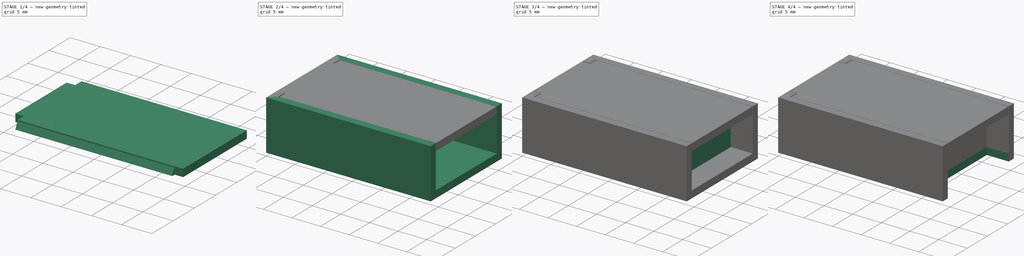
[diagram: build sequence overview — one tinted view per stage of 4, left to right]
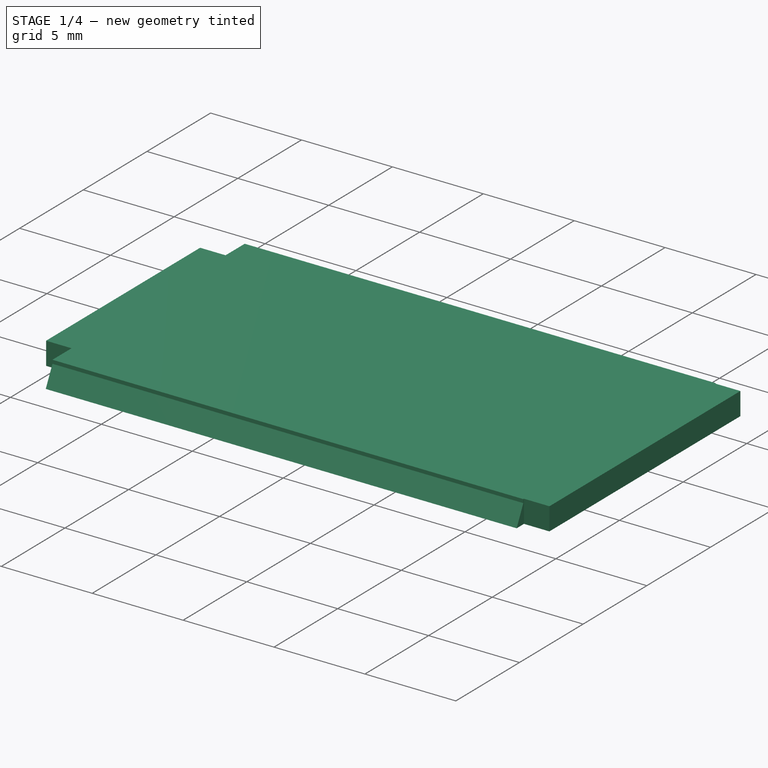
[diagram: stage 1 of 4 — iso view after this stage's code; geometry added in this stage tinted green]
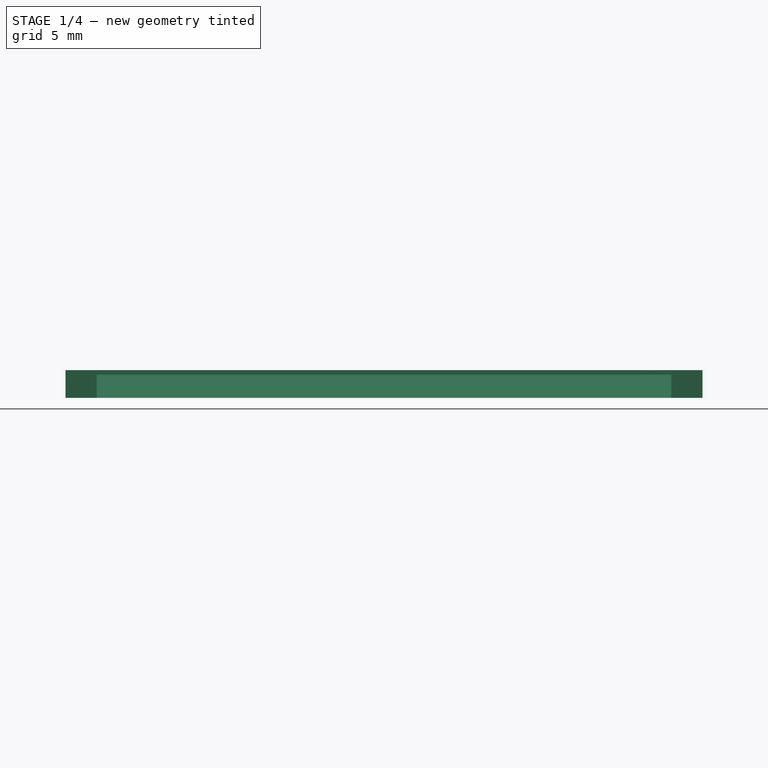
[diagram: stage 1 of 4 — front view after this stage's code; geometry added in this stage tinted green]
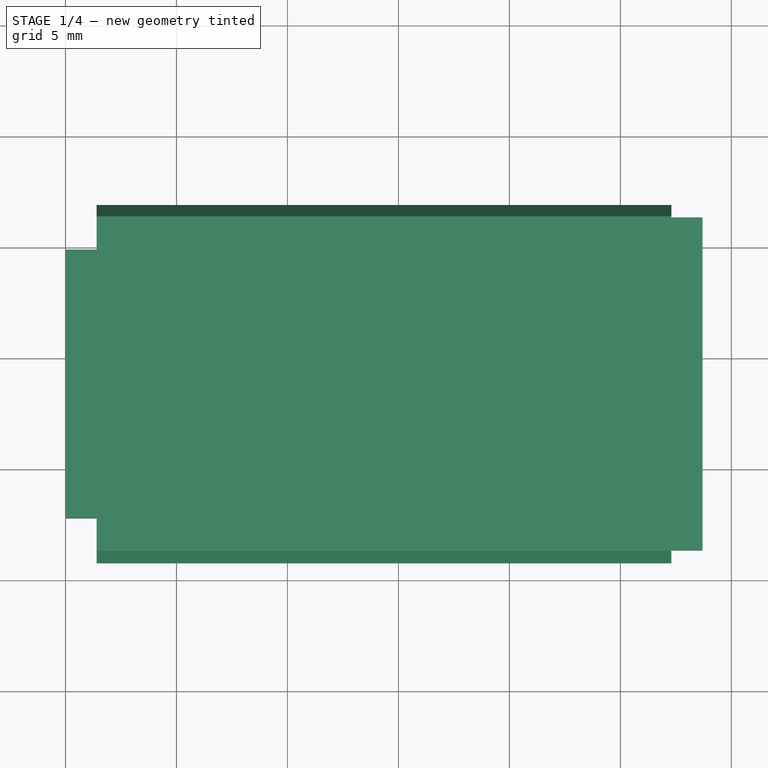
[diagram: stage 1 of 4 — top view after this stage's code; geometry added in this stage tinted green]
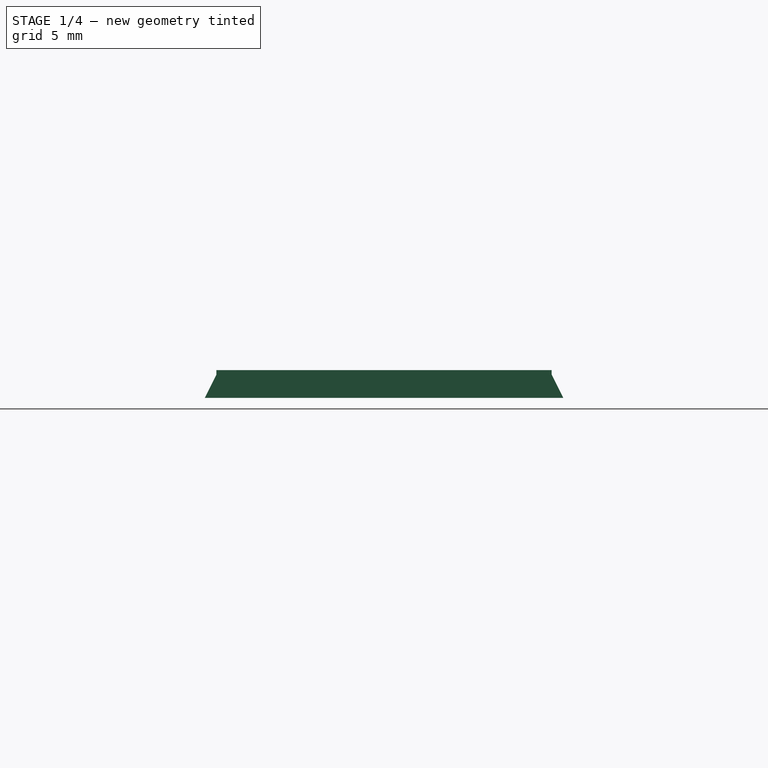
[diagram: stage 1 of 4 — right view after this stage's code; geometry added in this stage tinted green]
FCSTD DOCUMENT  (FreeCAD 0.18R)
Label: Cp2102Case
License: All rights reserved
LicenseURL: http://en.wikipedia.org/wiki/All_rights_reserved
objects: Sketcher::SketchObject×10, PartDesign::Pad×6, PartDesign::Pocket×4, Spreadsheet::Sheet×2, App::DocumentObjectGroup×2, Part::Box×1, Part::Cut×1
note: 32 computed .brp shape members not serialized (recipe doc carries the construction recipe); baked Part::Feature solids carry a one-line shape summary decoded from their .brp

FEATURE [Sketcher::SketchObject] Sketch007  label="CapGroove"
  MapMode = 5
  Placement = pos=(27.45,0,0) rot=(0.57735,0.57735,0.57735;2.0944rad)
  expr: Constraints[19] = Data.BaseWidth + 2 * Data.Tolerance
  expr: Constraints[8] = Calc.FullHeight - 0.2
  expr: Constraints[7] = Data.WallThickness
  expr: Placement.Base.x = Calc.FullLength - Data.WallThickness
  expr: Constraints[6] = (Data.WallThickness - 0.2) / 2
  expr: Constraints[5] = Data.WallThickness - 0.2
  sketch-geometry (7):
    g0: LineSegment StartX=1.25 StartY=8.5 StartZ=0 EndX=0.725 EndY=7.45 EndZ=0
    g1: LineSegment StartX=0.725 StartY=7.45 StartZ=0 EndX=1.25 EndY=7.45 EndZ=0
    g2: LineSegment StartX=1.25 StartY=7.45 StartZ=0 EndX=1.25 EndY=8.5 EndZ=0
    g3: LineSegment StartX=16.45 StartY=8.5 StartZ=0 EndX=16.45 EndY=7.45 EndZ=0
    g4: LineSegment StartX=16.45 StartY=7.45 StartZ=0 EndX=16.975 EndY=7.45 EndZ=0
    g5: LineSegment StartX=16.975 StartY=7.45 StartZ=0 EndX=16.45 EndY=8.5 EndZ=0
    g6: LineSegment [constr] StartX=1.25 StartY=8.5 StartZ=0 EndX=16.45 EndY=8.5 EndZ=0
  constraints (20):
    c: Coincident(g1,g0)
    c: Horizontal(g1)
    c: Coincident(g2,g1)
    c: Coincident(g2,g0)
    c: Vertical(g2)
    c: DistanceY(g2,g2) = 1.05
    c: DistanceX(g1,g1) = 0.525
    c: DistanceX(g-1,g1) = 1.25
    c: DistanceY(g-1,g0) = 8.5
    c: Vertical(g3)
    c: Coincident(g3,g4)
    c: Horizontal(g4)
    c: Coincident(g4,g5)
    c: Coincident(g5,g3)
    c: Equal(g3,g2)
    c: Equal(g1,g4)
    c: Coincident(g6,g0)
    c: Coincident(g6,g3)
    c: Horizontal(g6)
    c: DistanceX(g6,g6) = 15.2
FEATURE [Sketcher::SketchObject] Sketch008  label="CapGroove001"
  MapMode = 5
  Placement = pos=(27.3,0,0) rot=(0.57735,0.57735,0.57735;2.0944rad)
  expr: Constraints[0] = Calc.FullHeight - 0.2
  expr: Constraints[11] = Data.WallThickness + Data.Tolerance / 2
  expr: Constraints[5] = Data.BaseWidth + Data.Tolerance
  expr: Constraints[7] = Data.WallThickness - 0.2
  expr: Placement.Base.x = Calc.FullLength - Data.WallThickness - Data.Tolerance * 1.5
  expr: Constraints[6] = (Data.WallThickness - 0.2) / 2
  sketch-geometry (7):
    g0: LineSegment StartX=1.3 StartY=8.5 StartZ=0 EndX=0.775 EndY=7.45 EndZ=0
    g1: LineSegment StartX=0.775 StartY=7.45 StartZ=0 EndX=16.925 EndY=7.45 EndZ=0
    g2: LineSegment StartX=16.925 StartY=7.45 StartZ=0 EndX=16.4 EndY=8.5 EndZ=0
    g3: LineSegment [constr] StartX=1.3 StartY=8.5 StartZ=0 EndX=16.4 EndY=8.5 EndZ=0
    g4: LineSegment StartX=1.3 StartY=8.5 StartZ=0 EndX=1.3 EndY=8.7 EndZ=0
    g5: LineSegment StartX=1.3 StartY=8.7 StartZ=0 EndX=16.4 EndY=8.7 EndZ=0
    g6: LineSegment StartX=16.4 StartY=8.7 StartZ=0 EndX=16.4 EndY=8.5 EndZ=0
  constraints (20):
    c: DistanceY(g-1,g0) = 8.5
    c: Horizontal(g1)
    c: Coincident(g1,g2)
    c: Coincident(g3,g0)
    c: Horizontal(g3)
    c: DistanceX(g3,g3) = 15.1
    c: DistanceX(g0,g0) = 0.525
    c: DistanceY(g0,g0) = 1.05
    c: Coincident(g0,g1)
    c: Equal(g0,g2)
    c: Coincident(g2,g3)
    c: DistanceX(g-1,g0) = 1.3
    c: Coincident(g0,g4)
    c: Coincident(g4,g5)
    c: Horizontal(g5)
    c: Coincident(g5,g6)
    c: Coincident(g6,g2)
    c: Vertical(g6)
    c: Vertical(g4)
    c: DistanceY(g6,g6) = 0.2
FEATURE [PartDesign::Pad] Pad002
  Length = 25.9
  Length2 = 100
  Placement = pos=(27.3,0,0) rot=(0.57735,0.57735,0.57735;2.0944rad)
  Profile = -> Sketch008
  Reversed = true
  Type = 0
  expr: Length = Calc.FullLength - 2 * (Data.WallThickness + Data.Tolerance * 1.5)
FEATURE [App::DocumentObjectGroup] Group  label="Base"
  Group = -> [Box,Pocket,Pocket001,Pad,Pad001,Pocket002,Cut]
FEATURE [Sketcher::SketchObject] Sketch010  label="CapGroove002"
  MapMode = 5
  Placement = pos=(27.3,0,0) rot=(0.57735,0.57735,0.57735;2.0944rad)
  Support = -> [Pad002]
  expr: Constraints[11] = Data.WallThickness + Data.Tolerance
  expr: Constraints[10] = Data.BaseWidth
  expr: Constraints[8] = Data.WallThickness
  expr: Constraints[7] = Calc.FullHeight
  expr: Placement.Base.x = Calc.FullLength - Data.WallThickness - Data.Tolerance
  sketch-geometry (4):
    g0: LineSegment StartX=1.35 StartY=7.45 StartZ=0 EndX=16.35 EndY=7.45 EndZ=0
    g1: LineSegment StartX=1.35 StartY=7.45 StartZ=0 EndX=1.35 EndY=8.7 EndZ=0
    g2: LineSegment StartX=1.35 StartY=8.7 StartZ=0 EndX=16.35 EndY=8.7 EndZ=0
    g3: LineSegment StartX=16.35 StartY=8.7 StartZ=0 EndX=16.35 EndY=7.45 EndZ=0
  constraints (12):
    c: Horizontal(g0)
    c: Coincident(g1,g2)
    c: Horizontal(g2)
    c: Coincident(g2,g3)
    c: Vertical(g3)
    c: Vertical(g1)
    c: Coincident(g0,g1)
    c: DistanceY(g-1,g1) = 8.7
    c: DistanceY(g1,g1) = 1.25
    c: Coincident(g0,g3)
    c: DistanceX(g2,g2) = 15
    c: DistanceX(g-1,g0) = 1.35
FEATURE [PartDesign::Pad] Pad004
  Length = 1.4
  Length2 = 100
  Placement = pos=(27.3,0,0) rot=(0.57735,0.57735,0.57735;2.0944rad)
  Profile = -> Sketch010
  Type = 0
  expr: Length = Data.WallThickness + Data.Tolerance * 1.5
FEATURE [Sketcher::SketchObject] Sketch011
  MapMode = 5
  Placement = pos=(1.4,-1e-16,-2.8e-15) rot=(0.57735,0.57735,-0.57735;4.18879rad)
  Support = -> [Pad004]
  expr: Constraints[8] = (Calc.FullWidth - Data.ConnectorWidth) / 2
  expr: Constraints[11] = Data.ConnectorWidth
  expr: Constraints[10] = Data.WallThickness
  expr: Constraints[9] = Calc.FullHeight
  sketch-geometry (4):
    g0: LineSegment StartX=2.8 StartY=-8.7 StartZ=0 EndX=14.9 EndY=-8.7 EndZ=0
    g1: LineSegment StartX=14.9 StartY=-8.7 StartZ=0 EndX=14.9 EndY=-7.45 EndZ=0
    g2: LineSegment StartX=14.9 StartY=-7.45 StartZ=0 EndX=2.8 EndY=-7.45 EndZ=0
    g3: LineSegment StartX=2.8 StartY=-7.45 StartZ=0 EndX=2.8 EndY=-8.7 EndZ=0
  constraints (12):
    c: Coincident(g0,g1)
    c: Coincident(g1,g2)
    c: Coincident(g2,g3)
    c: Coincident(g3,g0)
    c: Horizontal(g0)
    c: Horizontal(g2)
    c: Vertical(g1)
    c: Vertical(g3)
    c: DistanceX(g-1,g0) = 2.8
    c: DistanceY(g0,g-1) = 8.7
    c: DistanceY(g3,g3) = 1.25
    c: DistanceX(g0,g0) = 12.1
FEATURE [PartDesign::Pad] Pad005
  Length = 1.4
  Length2 = 100
  Placement = pos=(27.3,0,0) rot=(0.57735,0.57735,0.57735;2.0944rad)
  Profile = -> Sketch011
  Type = 0
  expr: Length = Data.WallThickness + Data.Tolerance * 1.5
FEATURE [App::DocumentObjectGroup] Group001  label="Cap"
  Group = -> [Pad002,Pad004,Pad005]
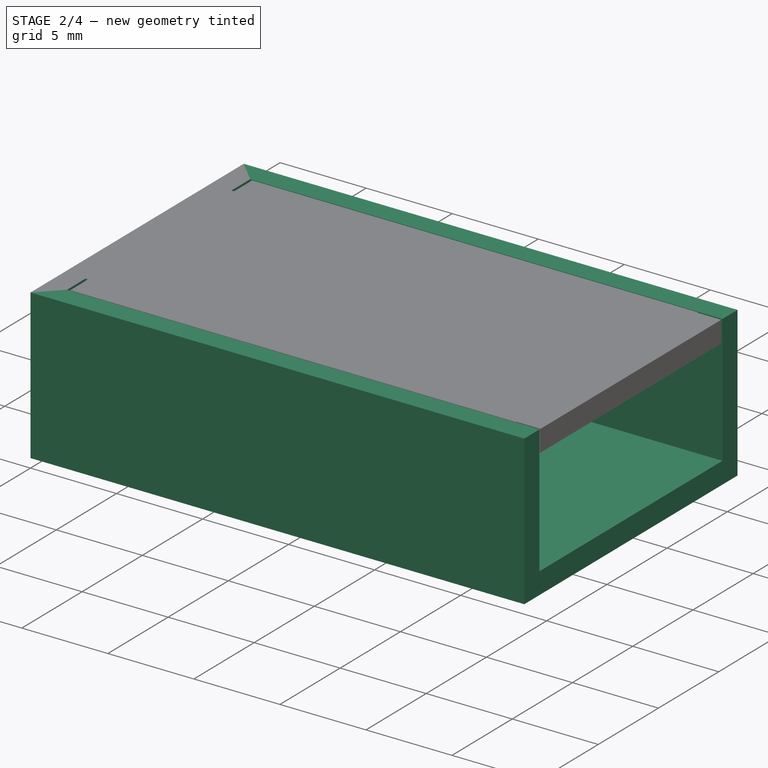
[diagram: stage 2 of 4 — iso view after this stage's code; geometry added in this stage tinted green]
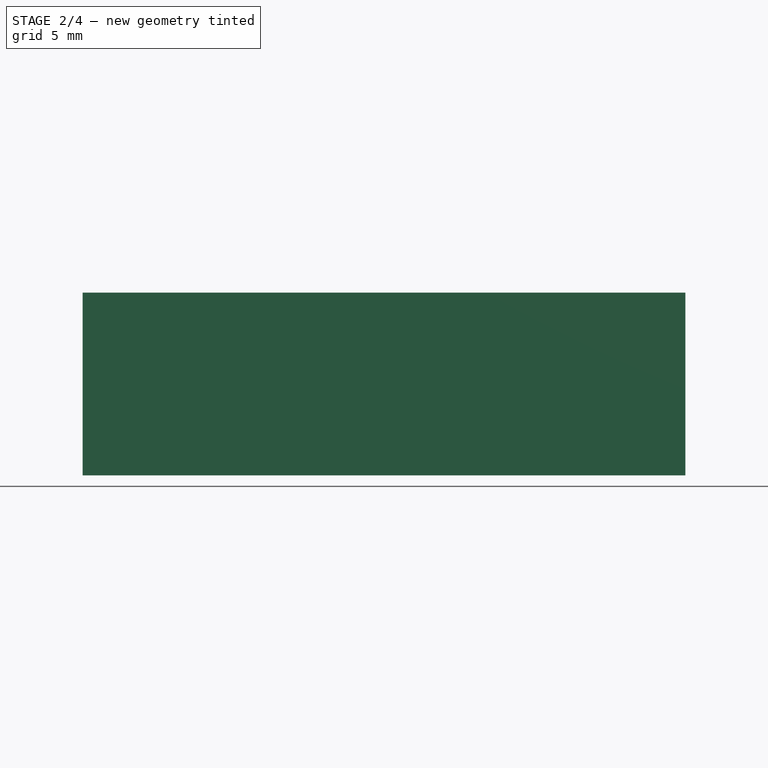
[diagram: stage 2 of 4 — front view after this stage's code; geometry added in this stage tinted green]
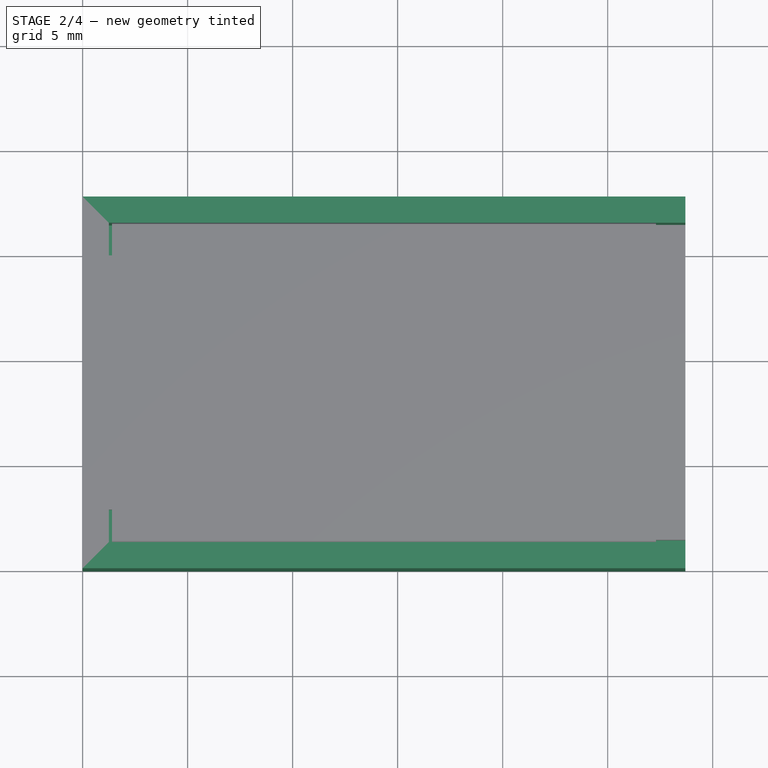
[diagram: stage 2 of 4 — top view after this stage's code; geometry added in this stage tinted green]
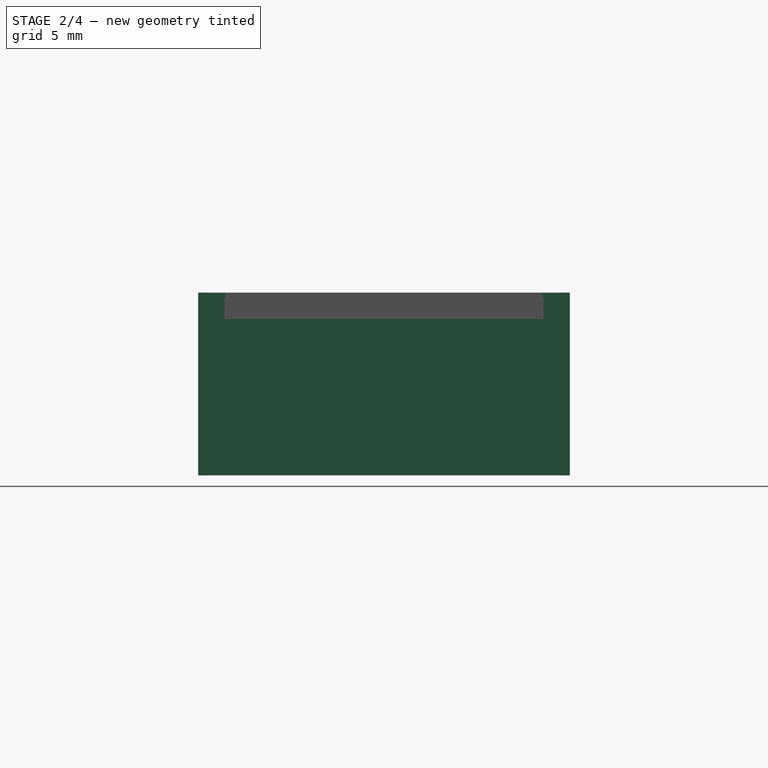
[diagram: stage 2 of 4 — right view after this stage's code; geometry added in this stage tinted green]
FEATURE [Spreadsheet::Sheet] Spreadsheet  label="Data"
  cells = B2=Tolerance; C2(Tolerance)=0.1; B3=WallThickness; C3(WallThickness)=1.25; B4=BaseLength; C4(BaseLength)=26; B5=BaseWidth; C5(BaseWidth)=15; B6=BaseHeight; C6(BaseHeight)=6; B7=ConnectorWidth; C7(ConnectorWidth)=12.1; B8=ConnectorHeight; C8(ConnectorHeight)=4.6; B9=PinsDistance; C9(PinsDistance)=23.5
FEATURE [Spreadsheet::Sheet] Spreadsheet001  label="Calc"
  cells = A2=FullLength; B2(FullLength)==Data.BaseLength + 2 * (Data.WallThickness + Data.Tolerance); A3=FullWidth; B3(FullWidth)==Data.BaseWidth + 2 * (Data.WallThickness + Data.Tolerance); A4=FullHeight; B4(FullHeight)==Data.BaseHeight + 2 * (Data.WallThickness + Data.Tolerance)
FEATURE [Part::Box] Box  label="BaseCube"
  AttacherType = Attacher::AttachEngine3D
  Height = 8.7
  Length = 28.7
  Width = 17.7
  expr: Height = Calc.FullHeight
  expr: Width = Calc.FullWidth
  expr: Length = Calc.FullLength
FEATURE [Sketcher::SketchObject] Sketch  label="MainCavity"
  MapMode = 5
  Placement = pos=(0,0,8.7) rot=(0,0,1;0rad)
  Support = -> [Box]
  expr: Constraints[11] = Data.WallThickness
  expr: Constraints[10] = Data.BaseLength + 2 * Data.Tolerance + Data.WallThickness
  expr: Constraints[9] = Data.BaseWidth + 2 * Data.Tolerance
  sketch-geometry (4):
    g0: LineSegment StartX=1.25 StartY=16.45 StartZ=0 EndX=28.7 EndY=16.45 EndZ=0
    g1: LineSegment StartX=28.7 StartY=16.45 StartZ=0 EndX=28.7 EndY=1.25 EndZ=0
    g2: LineSegment StartX=28.7 StartY=1.25 StartZ=0 EndX=1.25 EndY=1.25 EndZ=0
    g3: LineSegment StartX=1.25 StartY=1.25 StartZ=0 EndX=1.25 EndY=16.45 EndZ=0
  constraints (12):
    c: Coincident(g0,g1)
    c: Coincident(g1,g2)
    c: Coincident(g2,g3)
    c: Coincident(g3,g0)
    c: Horizontal(g0)
    c: Horizontal(g2)
    c: Vertical(g1)
    c: Vertical(g3)
    c: DistanceY(g-1,g2) = 1.25
    c: DistanceY(g3,g3) = 15.2
    c: DistanceX(g2,g2) = 27.45
    c: DistanceX(g-1,g2) = 1.25
FEATURE [PartDesign::Pocket] Pocket
  Length = 7.45
  Length2 = 100
  Profile = -> Sketch
  Type = 0
  expr: Length = Data.BaseHeight + Data.WallThickness + Data.Tolerance * 2
FEATURE [PartDesign::Pad] Pad003
  Length = 26.2
  Length2 = 100
  Placement = pos=(27.45,0,0) rot=(0.57735,0.57735,0.57735;2.0944rad)
  Profile = -> Sketch007
  Reversed = true
  Type = 0
  expr: Length = Data.BaseLength + 2 * Data.Tolerance
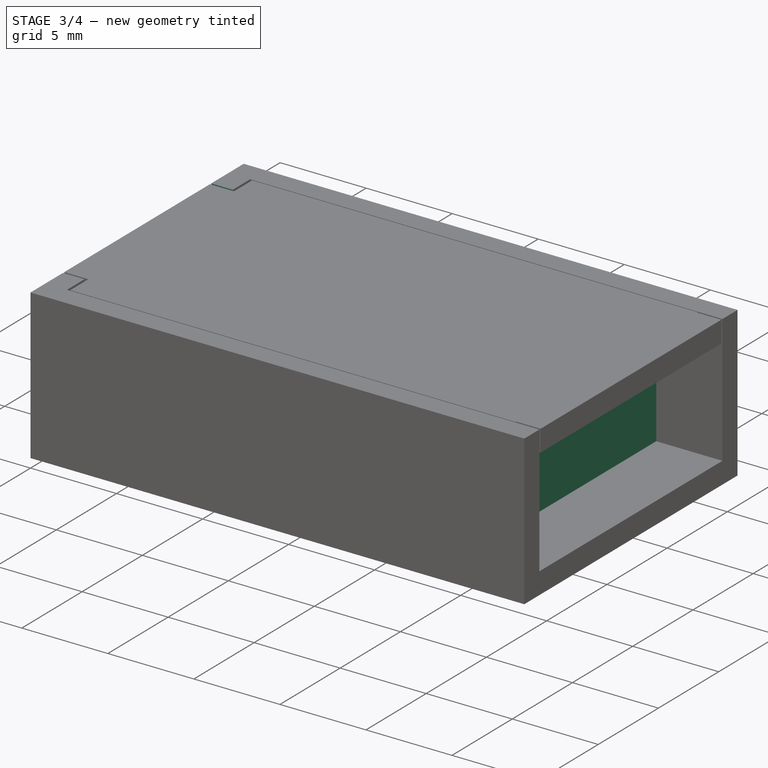
[diagram: stage 3 of 4 — iso view after this stage's code; geometry added in this stage tinted green]
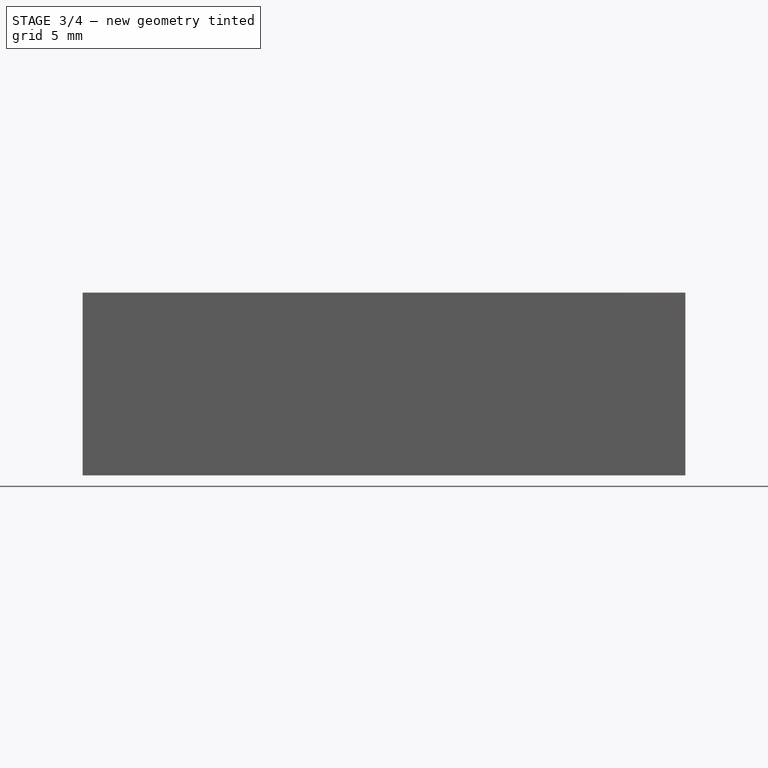
[diagram: stage 3 of 4 — front view after this stage's code; geometry added in this stage tinted green]
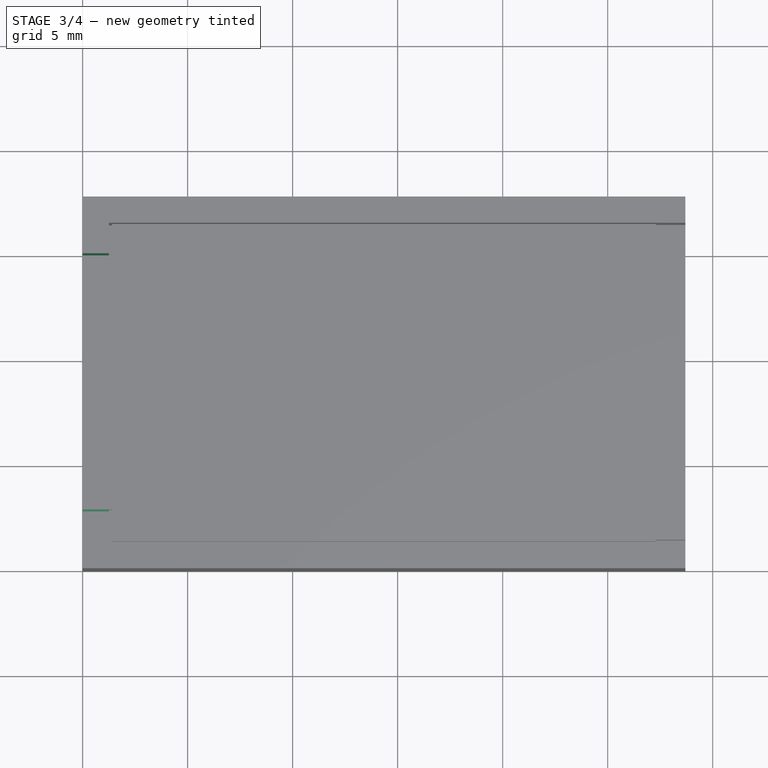
[diagram: stage 3 of 4 — top view after this stage's code; geometry added in this stage tinted green]
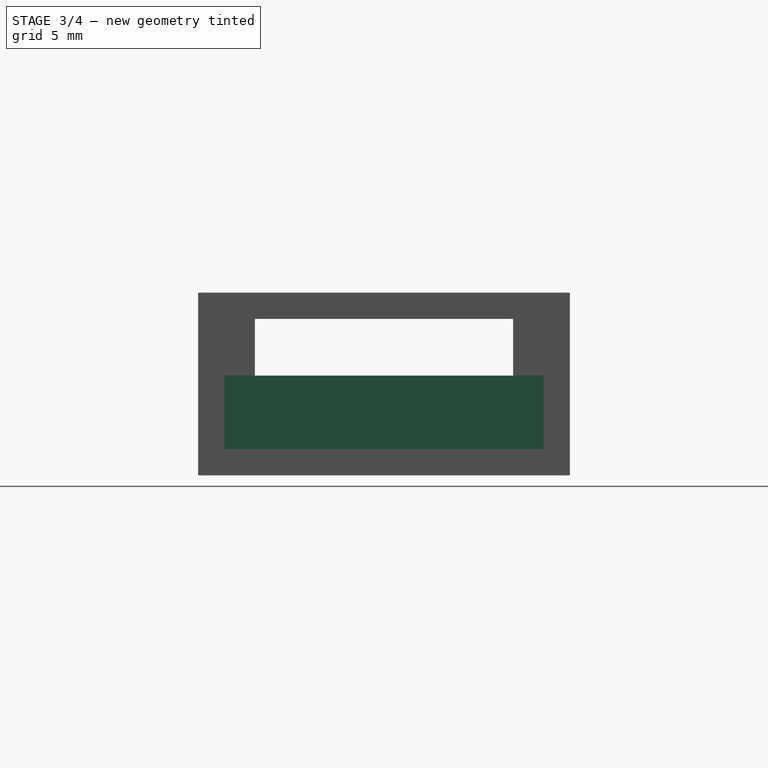
[diagram: stage 3 of 4 — right view after this stage's code; geometry added in this stage tinted green]
FEATURE [Sketcher::SketchObject] Sketch001  label="UsbConnectorHole"
  MapMode = 5
  Placement = pos=(0,0,0) rot=(0.57735,-0.57735,-0.57735;2.0944rad)
  Support = -> [Pocket]
  expr: Constraints.DistanceFromBottom = Data.WallThickness
  expr: Constraints[10] = (Data.BaseWidth + 2 * Data.WallThickness + 2 * Data.Tolerance - Data.ConnectorWidth - 2 * Data.Tolerance) / 2
  expr: Constraints.Constraint11 = Data.BaseHeight + (Data.WallThickness + Data.Tolerance) * 2 - Constraints.DistanceFromBottom
  expr: Constraints.RealConnectorWidth = Data.ConnectorWidth + 2 * Data.Tolerance
  sketch-geometry (4):
    g0: LineSegment StartX=-15 StartY=8.7 StartZ=0 EndX=-2.7 EndY=8.7 EndZ=0
    g1: LineSegment StartX=-2.7 StartY=8.7 StartZ=0 EndX=-2.7 EndY=1.25 EndZ=0
    g2: LineSegment StartX=-2.7 StartY=1.25 StartZ=0 EndX=-15 EndY=1.25 EndZ=0
    g3: LineSegment StartX=-15 StartY=1.25 StartZ=0 EndX=-15 EndY=8.7 EndZ=0
  constraints (12):
    c: Coincident(g0,g1)
    c: Coincident(g1,g2)
    c: Coincident(g2,g3)
    c: Coincident(g3,g0)
    c: Horizontal(g0)
    c: Horizontal(g2)
    c: Vertical(g1)
    c: Vertical(g3)
    c: DistanceX(g2,g2) = 12.3  'RealConnectorWidth'
    c: DistanceY(g3,g3) = 7.45  'Constraint11'
    c: DistanceX(g1,g-1) = 2.7
    c: DistanceY(g-1,g1) = 1.25  'DistanceFromBottom'
FEATURE [PartDesign::Pocket] Pocket001
  Length = 5
  Length2 = 100
  Profile = -> Sketch001
  Type = 2
FEATURE [Sketcher::SketchObject] Sketch004  label="UsConnectorRestraint"
  MapMode = 5
  Placement = pos=(0,0,1.25) rot=(0,0,1;0rad)
  Support = -> [Pocket001]
  expr: Constraints[11] = Data.WallThickness + Data.Tolerance + 4
  expr: Constraints[10] = Data.BaseWidth + 2 * Data.Tolerance
  expr: Constraints[8] = Data.WallThickness
  sketch-geometry (4):
    g0: LineSegment StartX=5.35 StartY=16.45 StartZ=0 EndX=6.6 EndY=16.45 EndZ=0
    g1: LineSegment StartX=6.6 StartY=16.45 StartZ=0 EndX=6.6 EndY=1.25 EndZ=0
    g2: LineSegment StartX=6.6 StartY=1.25 StartZ=0 EndX=5.35 EndY=1.25 EndZ=0
    g3: LineSegment StartX=5.35 StartY=1.25 StartZ=0 EndX=5.35 EndY=16.45 EndZ=0
  constraints (12):
    c: Coincident(g0,g1)
    c: Coincident(g1,g2)
    c: Coincident(g2,g3)
    c: Coincident(g3,g0)
    c: Horizontal(g0)
    c: Horizontal(g2)
    c: Vertical(g1)
    c: Vertical(g3)
    c: DistanceX(g0,g0) = 1.25
    c: DistanceY(g-1,g2) = 1.25
    c: DistanceY(g1,g1) = 15.2
    c: DistanceX(g-1,g2) = 5.35
FEATURE [PartDesign::Pad] Pad
  Length = 2
  Length2 = 100
  Profile = -> Sketch004
  Type = 0
FEATURE [Sketcher::SketchObject] Sketch005  label="PinsRestraint"
  MapMode = 5
  Placement = pos=(0,0,1.25) rot=(0,0,1;0rad)
  Support = -> [Pad]
  expr: Constraints[11] = Data.PinsDistance + Data.WallThickness + Data.Tolerance
  expr: Constraints[10] = Data.WallThickness
  expr: Constraints[9] = Data.BaseWidth + 2 * Data.Tolerance
  expr: Constraints[8] = Data.WallThickness
  sketch-geometry (4):
    g0: LineSegment StartX=23.6 StartY=16.45 StartZ=0 EndX=24.85 EndY=16.45 EndZ=0
    g1: LineSegment StartX=24.85 StartY=16.45 StartZ=0 EndX=24.85 EndY=1.25 EndZ=0
    g2: LineSegment StartX=24.85 StartY=1.25 StartZ=0 EndX=23.6 EndY=1.25 EndZ=0
    g3: LineSegment StartX=23.6 StartY=1.25 StartZ=0 EndX=23.6 EndY=16.45 EndZ=0
  constraints (12):
    c: Coincident(g0,g1)
    c: Coincident(g1,g2)
    c: Coincident(g2,g3)
    c: Coincident(g3,g0)
    c: Horizontal(g0)
    c: Horizontal(g2)
    c: Vertical(g1)
    c: Vertical(g3)
    c: DistanceY(g-1,g2) = 1.25
    c: DistanceY(g3,g3) = 15.2
    c: DistanceX(g0,g0) = 1.25
    c: DistanceX(g-1,g1) = 24.85
FEATURE [PartDesign::Pad] Pad001
  Length = 3.5
  Length2 = 100
  Profile = -> Sketch005
  Type = 0
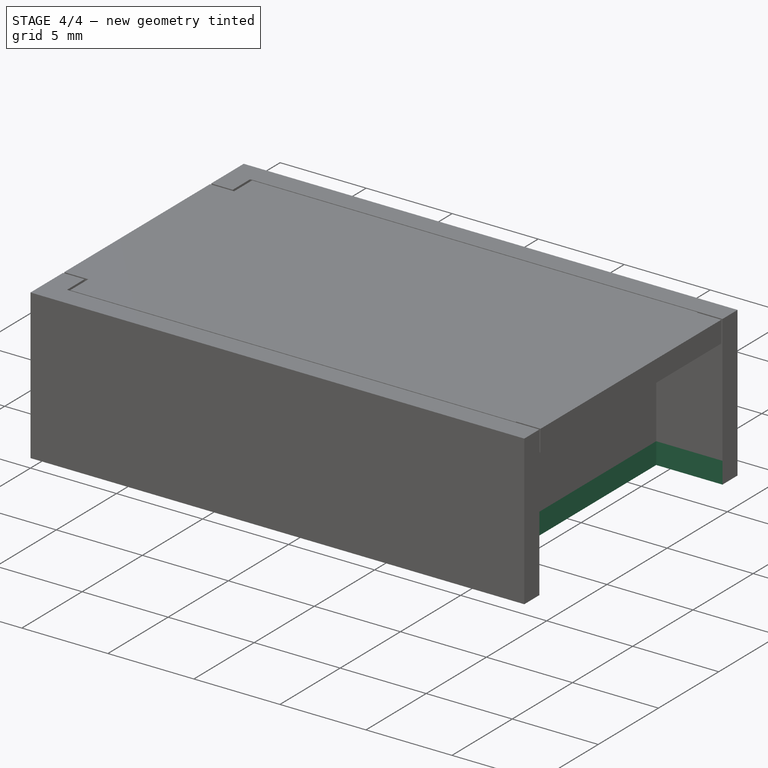
[diagram: stage 4 of 4 — iso view after this stage's code; geometry added in this stage tinted green]
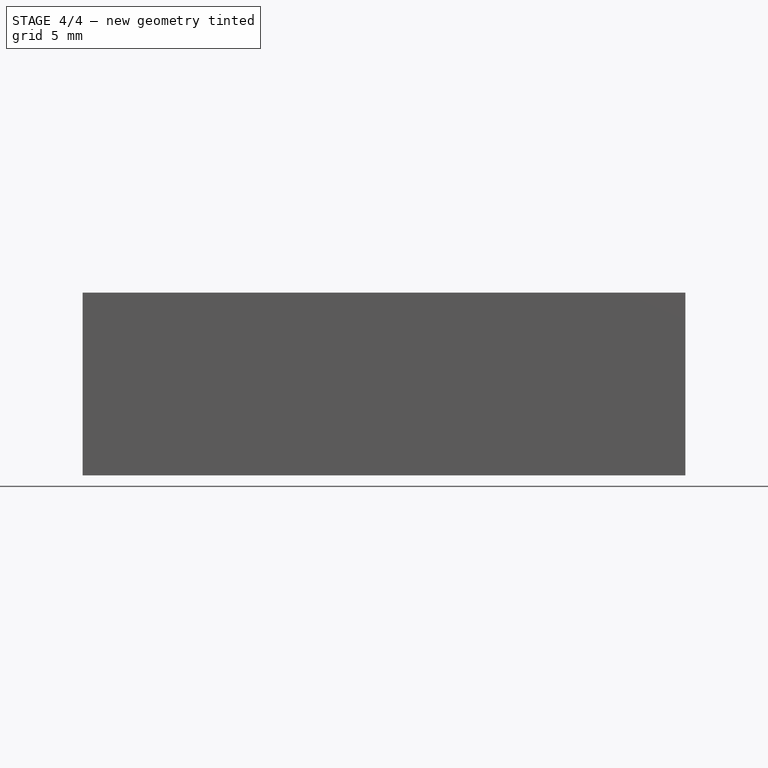
[diagram: stage 4 of 4 — front view after this stage's code; geometry added in this stage tinted green]
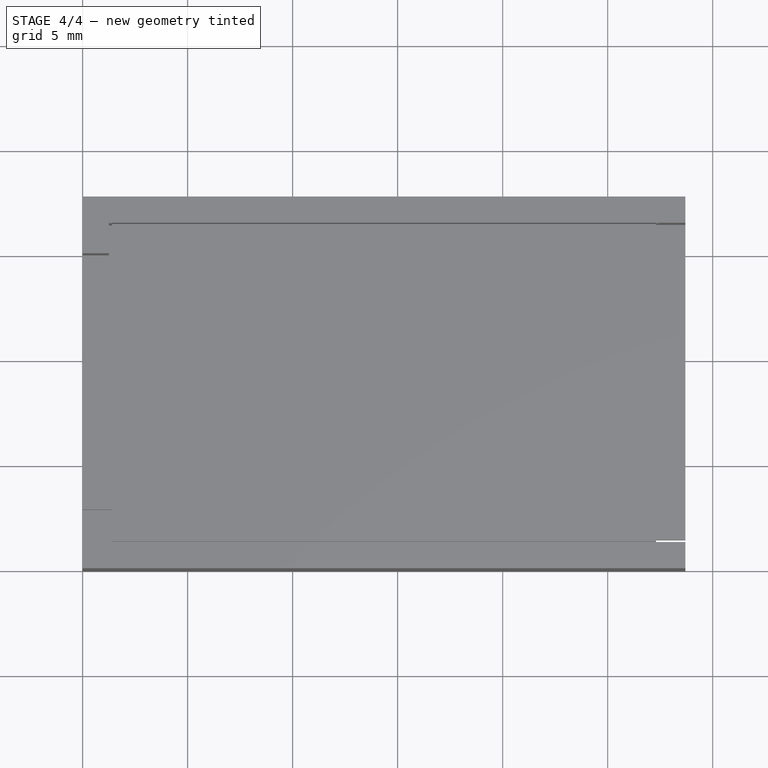
[diagram: stage 4 of 4 — top view after this stage's code; geometry added in this stage tinted green]
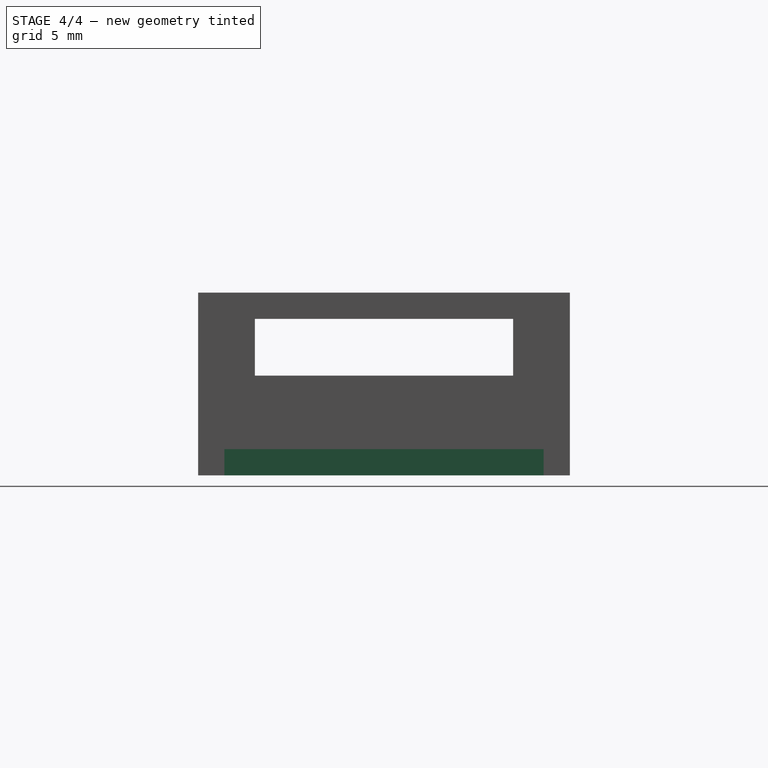
[diagram: stage 4 of 4 — right view after this stage's code; geometry added in this stage tinted green]
FEATURE [Sketcher::SketchObject] Sketch006  label="PinsRestraint001"
  MapMode = 5
  Placement = pos=(0,0,1.25) rot=(0,0,1;0rad)
  Support = -> [Pad001]
  expr: Constraints[11] = Calc.FullLength - Data.PinsDistance - Data.WallThickness - Data.Tolerance
  expr: Constraints[8] = Data.BaseWidth + 2 * Data.Tolerance
  expr: Constraints[1] = Data.PinsDistance + Data.WallThickness + Data.Tolerance
  sketch-geometry (4):
    g0: LineSegment StartX=24.85 StartY=16.45 StartZ=0 EndX=24.85 EndY=1.25 EndZ=0
    g1: LineSegment StartX=24.85 StartY=16.45 StartZ=0 EndX=28.7 EndY=16.45 EndZ=0
    g2: LineSegment StartX=28.7 StartY=16.45 StartZ=0 EndX=28.7 EndY=1.25 EndZ=0
    g3: LineSegment StartX=28.7 StartY=1.25 StartZ=0 EndX=24.85 EndY=1.25 EndZ=0
  constraints (12):
    c: Vertical(g0)
    c: DistanceX(g-1,g0) = 24.85
    c: Horizontal(g1)
    c: Coincident(g1,g2)
    c: Vertical(g2)
    c: Coincident(g2,g3)
    c: Coincident(g3,g0)
    c: Horizontal(g3)
    c: DistanceY(g2,g2) = 15.2
    c: DistanceY(g-1,g0) = 1.25
    c: Coincident(g0,g1)
    c: DistanceX(g1,g1) = 3.85
FEATURE [PartDesign::Pocket] Pocket002
  Length = 5
  Length2 = 100
  Profile = -> Sketch006
  Type = 2
FEATURE [Sketcher::SketchObject] Sketch009  label="SideHoles"
  MapMode = 5
  Placement = pos=(0,0,1.25) rot=(0,0,1;0rad)
  Support = -> [Pocket002]
  expr: Constraints[25] = Data.WallThickness
  expr: Constraints[23] = Data.BaseWidth + 2 * Data.Tolerance
  expr: Constraints[22] = Data.WallThickness + 10.5
  sketch-geometry (9):
    g0: LineSegment StartX=11.75 StartY=1.25 StartZ=0 EndX=22.75 EndY=1.25 EndZ=0
    g1: LineSegment StartX=22.75 StartY=1.25 StartZ=0 EndX=22.75 EndY=4.25 EndZ=0
    g2: LineSegment StartX=22.75 StartY=4.25 StartZ=0 EndX=11.75 EndY=4.25 EndZ=0
    g3: LineSegment StartX=11.75 StartY=4.25 StartZ=0 EndX=11.75 EndY=1.25 EndZ=0
    g4: LineSegment StartX=11.75 StartY=16.45 StartZ=0 EndX=22.75 EndY=16.45 EndZ=0
    g5: LineSegment StartX=22.75 StartY=16.45 StartZ=0 EndX=22.75 EndY=13.45 EndZ=0
    g6: LineSegment StartX=22.75 StartY=13.45 StartZ=0 EndX=11.75 EndY=13.45 EndZ=0
    g7: LineSegment StartX=11.75 StartY=13.45 StartZ=0 EndX=11.75 EndY=16.45 EndZ=0
    g8: LineSegment [constr] StartX=11.75 StartY=4.25 StartZ=0 EndX=11.75 EndY=13.45 EndZ=0
  constraints (26):
    c: Coincident(g0,g1)
    c: Coincident(g1,g2)
    c: Coincident(g2,g3)
    c: Coincident(g3,g0)
    c: Horizontal(g0)
    c: Horizontal(g2)
    c: Vertical(g1)
    c: Vertical(g3)
    c: Coincident(g4,g5)
    c: Coincident(g5,g6)
    c: Coincident(g6,g7)
    c: Coincident(g7,g4)
    c: Horizontal(g4)
    c: Horizontal(g6)
    c: Vertical(g5)
    c: Vertical(g7)
    c: DistanceX(g0,g0) = 11
    c: Equal(g0,g6)
    c: Equal(g3,g7)
    c: Coincident(g8,g2)
    c: Coincident(g8,g6)
    c: Vertical(g8)
    c: DistanceX(g-1,g0) = 11.75
    c: DistanceY(g0,g4) = 15.2
    c: DistanceY(g1,g1) = 3
    c: DistanceY(g-1,g0) = 1.25
FEATURE [PartDesign::Pocket] Pocket004
  Length = 5
  Length2 = 100
  Profile = -> Sketch009
  Type = 2
FEATURE [Part::Cut] Cut
  Base = -> Pocket004
  Tool = -> Pad003
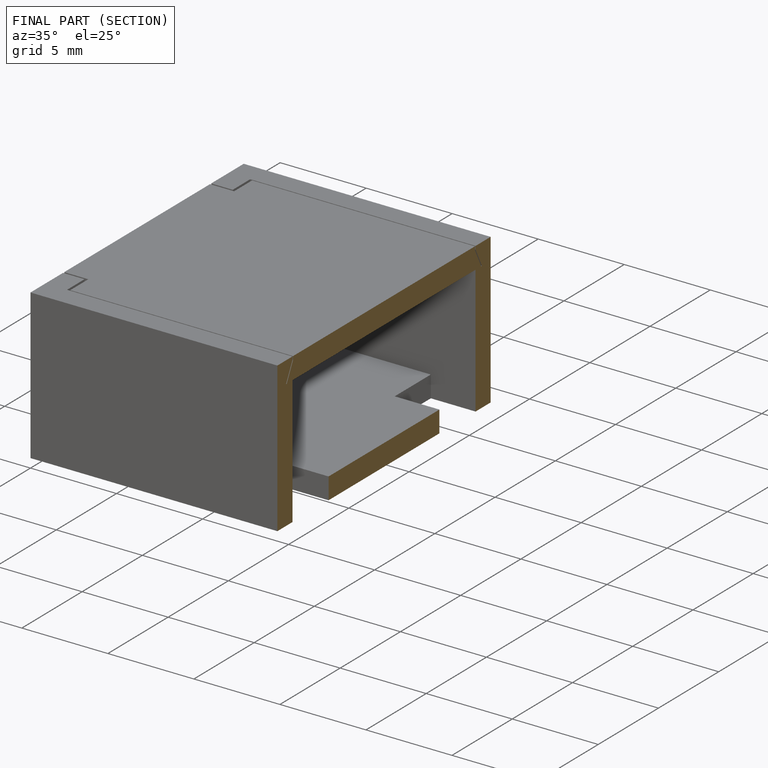
[diagram: finished part — half-section view (interior)]
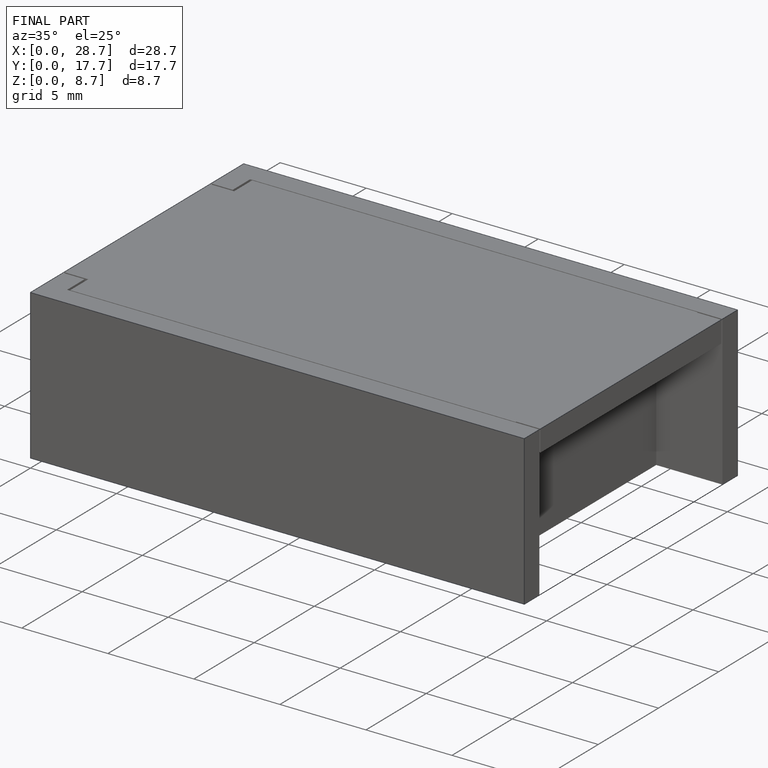
[diagram: finished part — iso view with bounding-box wireframe]
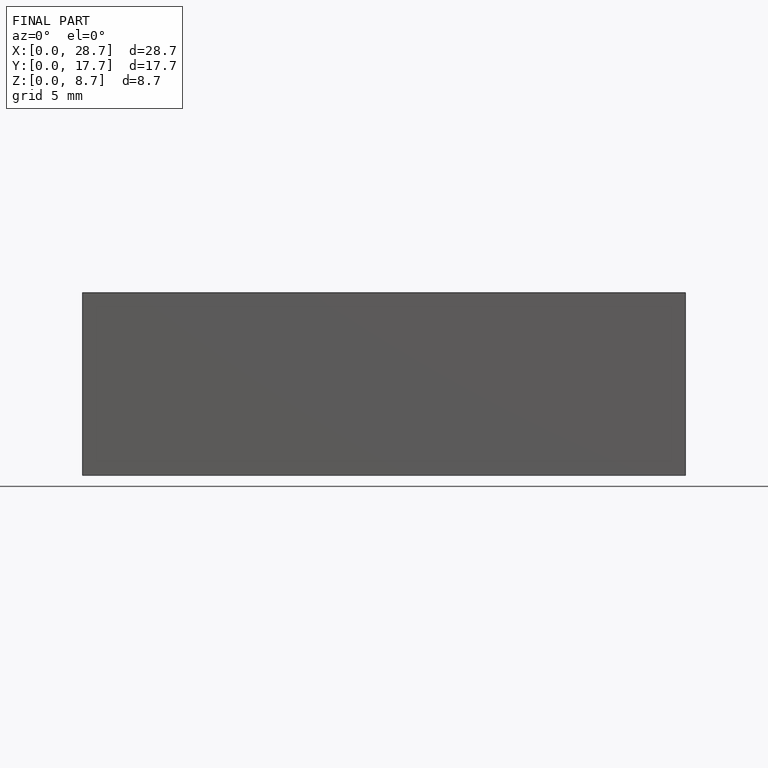
[diagram: finished part — front view with bounding-box wireframe]
